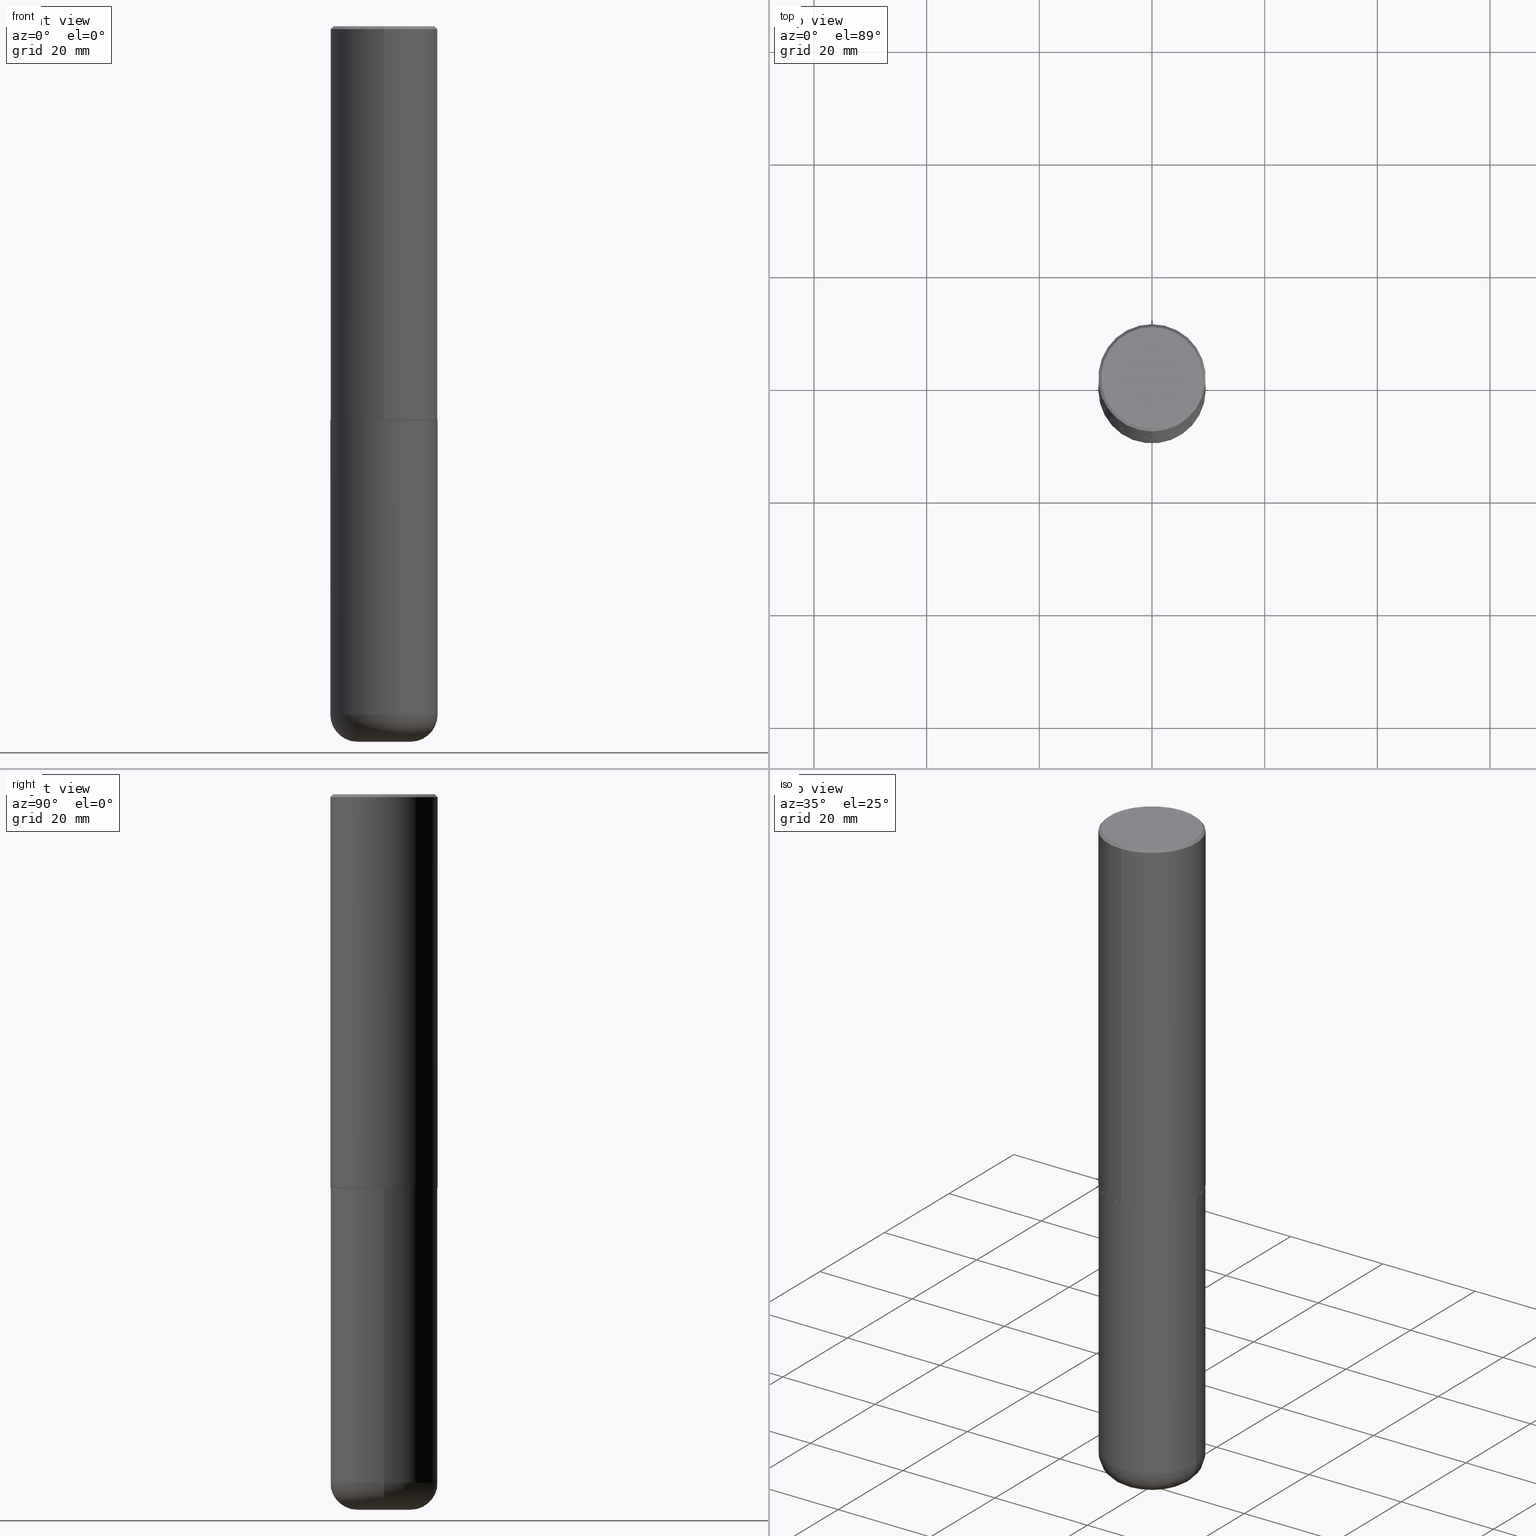
[diagram: canonical four-view strip — front | top / right | iso, engineering-drawing reading convention]
A machine part, canonical four-view strip (front | top / right | iso — engineering-drawing reading convention). The complete STEP part file that produces these views, byte-faithful:
ISO-10303-21;
HEADER;
FILE_DESCRIPTION (( 'STEP AP203' ),
    '1' );
FILE_NAME ('37674.STEP',
    '2024-03-02T07:50:25',
    ( '' ),
    ( '' ),
    'SwSTEP 2.0',
    'SolidWorks 2023',
    '' );
FILE_SCHEMA (( 'CONFIG_CONTROL_DESIGN' ));
ENDSEC;

DATA;
#1 = CARTESIAN_POINT ( 'NONE',  ( 6.726611077289389265E-29, -9.599322688432580971E-15, -2.750000000000000000 ) ) ;
#2 = CC_DESIGN_PERSON_AND_ORGANIZATION_ASSIGNMENT ( #382, #182, ( #349 ) ) ;
#3 = FACE_OUTER_BOUND ( 'NONE', #385, .T. ) ;
#4 = ORIENTED_EDGE ( 'NONE', *, *, #102, .F. ) ;
#5 = CIRCLE ( 'NONE', #242, 0.1850000000000000810 ) ;
#6 = DIRECTION ( 'NONE',  ( -2.445468806185136597E-29, 3.491481338843145583E-15, 1.000000000000000000 ) ) ;
#7 = VERTEX_POINT ( 'NONE', #262 ) ;
#8 = FACE_OUTER_BOUND ( 'NONE', #132, .T. ) ;
#9 = EDGE_CURVE ( 'NONE', #397, #365, #125, .T. ) ;
#10 = DATE_TIME_ROLE ( 'creation_date' ) ;
#11 = CARTESIAN_POINT ( 'NONE',  ( -2.611628041454596160E-15, -0.3740000000000096581, -2.749999999999998668 ) ) ;
#12 = EDGE_LOOP ( 'NONE', ( #109, #205, #30, #260 ) ) ;
#13 = ORIENTED_EDGE ( 'NONE', *, *, #312, .T. ) ;
#14 = VECTOR ( 'NONE', #346, 39.37007874015748143 ) ;
#15 = CARTESIAN_POINT ( 'NONE',  ( 6.724165036897648492E-29, -9.595832025636787455E-15, -2.749000000000000110 ) ) ;
#16 = EDGE_LOOP ( 'NONE', ( #169, #196, #314, #308 ) ) ;
#17 = DIRECTION ( 'NONE',  ( -6.982962677686265922E-15, -1.000000000000000000, 2.913971193241877611E-15 ) ) ;
#18 = ADVANCED_FACE ( 'NONE', ( #195 ), #177, .T. ) ;
#19 = CIRCLE ( 'NONE', #206, 0.3750000000000001110 ) ;
#20 = FACE_OUTER_BOUND ( 'NONE', #65, .T. ) ;
#21 = LOCAL_TIME ( 2, 50, 25.00000000000000000, #367 ) ;
#22 = EDGE_CURVE ( 'NONE', #334, #93, #266, .T. ) ;
#23 = DIRECTION ( 'NONE',  ( -2.446040391741596606E-29, 3.490662795793665557E-15, 1.000000000000000000 ) ) ;
#24 = CARTESIAN_POINT ( 'NONE',  ( 1.222734403092568523E-28, -1.745740669421572989E-14, -5.000000000000000000 ) ) ;
#25 = DIRECTION ( 'NONE',  ( 2.438088387897960049E-29, -3.491481338843145188E-15, -1.000000000000000000 ) ) ;
#26 = AXIS2_PLACEMENT_3D ( 'NONE', #98, #301, #388 ) ;
#27 = LENGTH_MEASURE_WITH_UNIT ( LENGTH_MEASURE( 0.02539999999999999897 ), #190 );
#28 = VERTEX_POINT ( 'NONE', #230 ) ;
#29 =( NAMED_UNIT ( * ) SI_UNIT ( $, .STERADIAN. ) SOLID_ANGLE_UNIT ( ) );
#30 = ORIENTED_EDGE ( 'NONE', *, *, #226, .F. ) ;
#31 = DIRECTION ( 'NONE',  ( 1.000000000000000000, 0.000000000000000000, 0.000000000000000000 ) ) ;
#32 = DIRECTION ( 'NONE',  ( -2.446040391741596606E-29, 3.490662795793665557E-15, 1.000000000000000000 ) ) ;
#33 = ORIENTED_EDGE ( 'NONE', *, *, #133, .F. ) ;
#34 = AXIS2_PLACEMENT_3D ( 'NONE', #77, #142, #81 ) ;
#35 = APPROVAL_PERSON_ORGANIZATION ( #69, #275, #278 ) ;
#36 = EDGE_LOOP ( 'NONE', ( #129, #403, #399, #263 ) ) ;
#37 = ORIENTED_EDGE ( 'NONE', *, *, #9, .T. ) ;
#38 = COORDINATED_UNIVERSAL_TIME_OFFSET ( 5, 0, .BEHIND. ) ;
#39 = ORIENTED_EDGE ( 'NONE', *, *, #49, .F. ) ;
#40 = CLOSED_SHELL ( 'NONE', ( #409, #94, #360, #313, #127, #145, #335, #251 ) ) ;
#41 = EDGE_CURVE ( 'NONE', #228, #325, #368, .T. ) ;
#42 = DIRECTION ( 'NONE',  ( -2.445468806185136597E-29, 3.491481338843145583E-15, 1.000000000000000000 ) ) ;
#43 = APPROVAL ( #47, 'UNSPECIFIED' ) ;
#44 = PLANE ( 'NONE',  #180 ) ;
#45 = CARTESIAN_POINT ( 'NONE',  ( -0.1850000000000000533, -1.547952117867934441E-14, -4.810000000000000497 ) ) ;
#46 = FACE_OUTER_BOUND ( 'NONE', #267, .T. ) ;
#47 = APPROVAL_STATUS ( 'not_yet_approved' ) ;
#48 = VECTOR ( 'NONE', #375, 39.37007874015748143 ) ;
#49 = EDGE_CURVE ( 'NONE', #7, #138, #104, .T. ) ;
#50 = CALENDAR_DATE ( 2024, 2, 3 ) ;
#51 = AXIS2_PLACEMENT_3D ( 'NONE', #239, #207, #17 ) ;
#52 = EDGE_CURVE ( 'NONE', #362, #138, #347, .T. ) ;
#53 = DIRECTION ( 'NONE',  ( -6.982962677686266711E-15, -1.000000000000000000, 2.921762560068730595E-15 ) ) ;
#54 = LINE ( 'NONE', #188, #247 ) ;
#55 = DIRECTION ( 'NONE',  ( -2.446040391741596606E-29, 3.490662795793665557E-15, 1.000000000000000000 ) ) ;
#56 = COORDINATED_UNIVERSAL_TIME_OFFSET ( 5, 0, .BEHIND. ) ;
#57 = PLANE ( 'NONE',  #26 ) ;
#58 = TOROIDAL_SURFACE ( 'NONE', #161, 0.1850000000000000533, 0.1899999999999999467 ) ;
#59 = DIRECTION ( 'NONE',  ( -2.445468806185136877E-29, 3.491481338843145188E-15, 1.000000000000000000 ) ) ;
#60 = ORIENTED_EDGE ( 'NONE', *, *, #240, .T. ) ;
#61 = APPLICATION_PROTOCOL_DEFINITION ( 'international standard', 'config_control_design', 1994, #214 ) ;
#62 = EDGE_CURVE ( 'NONE', #28, #228, #280, .T. ) ;
#63 = DIRECTION ( 'NONE',  ( -6.982962677686266711E-15, -1.000000000000000000, 2.921762560068730595E-15 ) ) ;
#64 = DIRECTION ( 'NONE',  ( -2.445468806185136597E-29, 3.491481338843145583E-15, 1.000000000000000000 ) ) ;
#65 = EDGE_LOOP ( 'NONE', ( #269, #181, #372, #414 ) ) ;
#66 = PLANE ( 'NONE',  #120 ) ;
#67 = ORIENTED_EDGE ( 'NONE', *, *, #9, .F. ) ;
#68 = AXIS2_PLACEMENT_3D ( 'NONE', #317, #92, #411 ) ;
#69 = PERSON_AND_ORGANIZATION ( #171, #272 ) ;
#70 = CARTESIAN_POINT ( 'NONE',  ( 0.1850000000000000810, -1.874925478958768986E-14, -5.000000000000000000 ) ) ;
#71 = PERSON_AND_ORGANIZATION ( #171, #272 ) ;
#72 = ORIENTED_EDGE ( 'NONE', *, *, #133, .T. ) ;
#73 = CARTESIAN_POINT ( 'NONE',  ( 1.176270495775050811E-28, -1.679402523983553013E-14, -4.810000000000000497 ) ) ;
#74 = EDGE_CURVE ( 'NONE', #235, #362, #5, .T. ) ;
#75 = PERSON_AND_ORGANIZATION_ROLE ( 'creator' ) ;
#76 = DIRECTION ( 'NONE',  ( 2.446040391741596606E-29, -3.490662795793665557E-15, -1.000000000000000000 ) ) ;
#77 = CARTESIAN_POINT ( 'NONE',  ( 1.176270495775050811E-28, -1.679402523983553013E-14, -4.810000000000000497 ) ) ;
#78 = AXIS2_PLACEMENT_3D ( 'NONE', #246, #76, #395 ) ;
#79 = CC_DESIGN_APPROVAL ( #43, ( #91 ) ) ;
#80 = CYLINDRICAL_SURFACE ( 'NONE', #217, 0.3750000000000001110 ) ;
#81 = DIRECTION ( 'NONE',  ( 1.000000000000000000, -6.982962677686265922E-15, 0.000000000000000000 ) ) ;
#82 = APPLICATION_CONTEXT ( 'configuration controlled 3d designs of mechanical parts and assemblies' ) ;
#83 = APPROVAL_DATE_TIME ( #216, #43 ) ;
#84 = CIRCLE ( 'NONE', #407, 0.1850000000000000810 ) ;
#85 = DIRECTION ( 'NONE',  ( 1.000000000000000000, -6.982962677686265922E-15, 4.876176775795935793E-29 ) ) ;
#86 = APPROVAL_PERSON_ORGANIZATION ( #315, #210, #95 ) ;
#87 = CARTESIAN_POINT ( 'NONE',  ( -0.3750000000000000555, -1.053326420172671351E-14, -2.750000000000000000 ) ) ;
#88 = CARTESIAN_POINT ( 'NONE',  ( 2.548781377355487113E-15, 0.3549999999999999822, -1.192522237898212341E-15 ) ) ;
#89 = EDGE_CURVE ( 'NONE', #288, #325, #268, .T. ) ;
#90 = AXIS2_PLACEMENT_3D ( 'NONE', #100, #150, #371 ) ;
#91 = SECURITY_CLASSIFICATION ( '', '', #276 ) ;
#92 = DIRECTION ( 'NONE',  ( -2.446040391741596606E-29, 3.490662795793665557E-15, 1.000000000000000000 ) ) ;
#93 = VERTEX_POINT ( 'NONE', #286 ) ;
#94 = ADVANCED_FACE ( 'NONE', ( #183 ), #220, .T. ) ;
#95 = APPROVAL_ROLE ( '' ) ;
#96 = DIRECTION ( 'NONE',  ( -6.982962677686266711E-15, -1.000000000000000000, 2.921762560068730595E-15 ) ) ;
#97 = CYLINDRICAL_SURFACE ( 'NONE', #90, 0.3750000000000001110 ) ;
#98 = CARTESIAN_POINT ( 'NONE',  ( 1.222734403092568523E-28, -1.745740669421572989E-14, -5.000000000000000000 ) ) ;
#99 = CC_DESIGN_PERSON_AND_ORGANIZATION_ASSIGNMENT ( #243, #404, ( #91 ) ) ;
#100 = CARTESIAN_POINT ( 'NONE',  ( 0.000000000000000000, 0.000000000000000000, 0.000000000000000000 ) ) ;
#101 = ORIENTED_EDGE ( 'NONE', *, *, #62, .T. ) ;
#102 = EDGE_CURVE ( 'NONE', #304, #238, #351, .T. ) ;
#103 = EDGE_LOOP ( 'NONE', ( #330, #13, #232, #201 ) ) ;
#104 = CIRCLE ( 'NONE', #34, 0.3750000000000001110 ) ;
#105 = CALENDAR_DATE ( 2024, 2, 3 ) ;
#106 = ORIENTED_EDGE ( 'NONE', *, *, #49, .T. ) ;
#107 = CC_DESIGN_PERSON_AND_ORGANIZATION_ASSIGNMENT ( #71, #140, ( #394 ) ) ;
#108 = CARTESIAN_POINT ( 'NONE',  ( -1.141397163745304909E-45, 1.628849886601155835E-31, 4.666305460853910467E-17 ) ) ;
#109 = ORIENTED_EDGE ( 'NONE', *, *, #284, .T. ) ;
#110 = DATE_TIME_ROLE ( 'classification_date' ) ;
#111 = AXIS2_PLACEMENT_3D ( 'NONE', #298, #6, #128 ) ;
#112 = PERSON_AND_ORGANIZATION ( #171, #272 ) ;
#113 = CARTESIAN_POINT ( 'NONE',  ( 2.664535259100376880E-15, 0.3750000000000002220, -1.308998548422625521E-15 ) ) ;
#114 = DIRECTION ( 'NONE',  ( -1.000000000000000000, 6.982962677686265922E-15, -4.876176775795935793E-29 ) ) ;
#115 = CONICAL_SURFACE ( 'NONE', #78, 0.3750000000000000555, 0.7853981633974465026 ) ;
#116 = EDGE_CURVE ( 'NONE', #304, #28, #417, .T. ) ;
#117 = EDGE_LOOP ( 'NONE', ( #106, #72, #67, #303 ) ) ;
#118 = CARTESIAN_POINT ( 'NONE',  ( 6.726611077289389265E-29, -9.599322688432580971E-15, -2.750000000000000000 ) ) ;
#119 = EDGE_CURVE ( 'NONE', #288, #334, #383, .T. ) ;
#120 = AXIS2_PLACEMENT_3D ( 'NONE', #172, #361, #332 ) ;
#121 = CARTESIAN_POINT ( 'NONE',  ( 0.3750000000000001110, -2.618611004132350411E-15, 1.828566290923476483E-29 ) ) ;
#122 = DIRECTION ( 'NONE',  ( -2.446040391741596606E-29, 3.490662795793665557E-15, 1.000000000000000000 ) ) ;
#123 = DIRECTION ( 'NONE',  ( 1.000000000000000000, -6.982962677686272233E-15, 0.000000000000000000 ) ) ;
#124 = ADVANCED_FACE ( 'NONE', ( #264 ), #58, .T. ) ;
#125 = CIRCLE ( 'NONE', #410, 0.3750000000000000555 ) ;
#126 = ORIENTED_EDGE ( 'NONE', *, *, #284, .F. ) ;
#127 = ADVANCED_FACE ( 'NONE', ( #3 ), #184, .T. ) ;
#128 = DIRECTION ( 'NONE',  ( 1.000000000000000000, -6.982962677686269077E-15, 4.883557194083113462E-29 ) ) ;
#129 = ORIENTED_EDGE ( 'NONE', *, *, #119, .F. ) ;
#130 = DIRECTION ( 'NONE',  ( -2.445468806185136597E-29, 3.491481338843145583E-15, 1.000000000000000000 ) ) ;
#131 = CARTESIAN_POINT ( 'NONE',  ( 6.725039217009124520E-29, -9.601573681818649859E-15, -2.750000000000000000 ) ) ;
#132 = EDGE_LOOP ( 'NONE', ( #273, #285 ) ) ;
#133 = EDGE_CURVE ( 'NONE', #138, #365, #54, .T. ) ;
#134 = CC_DESIGN_DATE_AND_TIME_ASSIGNMENT ( #336, #110, ( #91 ) ) ;
#135 = EDGE_LOOP ( 'NONE', ( #386, #202, #39, #170 ) ) ;
#136 = DIRECTION ( 'NONE',  ( 1.000000000000000000, -6.982962677686272233E-15, 0.000000000000000000 ) ) ;
#137 = DIRECTION ( 'NONE',  ( -2.446040391741596606E-29, 3.490662795793665557E-15, 1.000000000000000000 ) ) ;
#138 = VERTEX_POINT ( 'NONE', #156 ) ;
#139 = CARTESIAN_POINT ( 'NONE',  ( 1.222734403092568523E-28, -1.745740669421572989E-14, -5.000000000000000000 ) ) ;
#140 = PERSON_AND_ORGANIZATION_ROLE ( 'design_supplier' ) ;
#141 = PLANE ( 'NONE',  #378 ) ;
#142 = DIRECTION ( 'NONE',  ( -2.445468806185136597E-29, 3.491481338843145583E-15, 1.000000000000000000 ) ) ;
#143 = CIRCLE ( 'NONE', #357, 0.3750000000000003886 ) ;
#144 = DIRECTION ( 'NONE',  ( -2.445468806185136597E-29, 3.491481338843145583E-15, 1.000000000000000000 ) ) ;
#145 = ADVANCED_FACE ( 'NONE', ( #185 ), #295, .T. ) ;
#146 = COORDINATED_UNIVERSAL_TIME_OFFSET ( 5, 0, .BEHIND. ) ;
#147 = DIRECTION ( 'NONE',  ( 6.982962677686265922E-15, 1.000000000000000000, -3.494488891895536035E-15 ) ) ;
#148 = LOCAL_TIME ( 2, 50, 25.00000000000000000, #56 ) ;
#149 = LINE ( 'NONE', #113, #14 ) ;
#150 = DIRECTION ( 'NONE',  ( -2.445468806185136597E-29, 3.491481338843145583E-15, 1.000000000000000000 ) ) ;
#151 = CALENDAR_DATE ( 2024, 2, 3 ) ;
#152 = ORIENTED_EDGE ( 'NONE', *, *, #370, .F. ) ;
#153 = DIRECTION ( 'NONE',  ( -6.982962677686266711E-15, -1.000000000000000000, 2.921762560068730595E-15 ) ) ;
#154 = AXIS2_PLACEMENT_3D ( 'NONE', #218, #122, #255 ) ;
#155 = CIRCLE ( 'NONE', #408, 0.1899999999999999190 ) ;
#156 = CARTESIAN_POINT ( 'NONE',  ( -0.3750000000000000555, -1.412948998073515443E-14, -4.810000000000000497 ) ) ;
#157 = DIRECTION ( 'NONE',  ( -2.446040391741596606E-29, 3.490662795793665557E-15, 1.000000000000000000 ) ) ;
#158 = EDGE_CURVE ( 'NONE', #7, #397, #413, .T. ) ;
#159 = ORIENTED_EDGE ( 'NONE', *, *, #41, .T. ) ;
#160 = DIRECTION ( 'NONE',  ( -6.982962677686265922E-15, -1.000000000000000000, 3.494488891895536035E-15 ) ) ;
#161 = AXIS2_PLACEMENT_3D ( 'NONE', #73, #130, #309 ) ;
#162 = CONICAL_SURFACE ( 'NONE', #416, 0.3739999999999999991, 0.7853981633977213939 ) ;
#163 = EDGE_LOOP ( 'NONE', ( #316, #299 ) ) ;
#164 = CARTESIAN_POINT ( 'NONE',  ( 0.3750000000000000555, -1.222018468595100145E-14, -2.750000000000000000 ) ) ;
#165 = CARTESIAN_POINT ( 'NONE',  ( -2.504081769186608216E-15, -0.3549999999999999822, 1.285848347115290366E-15 ) ) ;
#166 = ORIENTED_EDGE ( 'NONE', *, *, #312, .F. ) ;
#167 = EDGE_CURVE ( 'NONE', #362, #235, #84, .T. ) ;
#168 = CARTESIAN_POINT ( 'NONE',  ( 1.176270495775050811E-28, -1.679402523983553013E-14, -4.810000000000000497 ) ) ;
#169 = ORIENTED_EDGE ( 'NONE', *, *, #52, .F. ) ;
#170 = ORIENTED_EDGE ( 'NONE', *, *, #348, .F. ) ;
#171 = PERSON ( 'UNSPECIFIED', 'UNSPECIFIED', 'UNSPECIFIED', ('UNSPECIFIED'), ('UNSPECIFIED'), ('UNSPECIFIED') ) ;
#172 = CARTESIAN_POINT ( 'NONE',  ( 2.478951750578624209E-15, 0.3549999999999999822, -1.215853765202481601E-15 ) ) ;
#173 = CC_DESIGN_PERSON_AND_ORGANIZATION_ASSIGNMENT ( #406, #75, ( #394 ) ) ;
#174 = DESIGN_CONTEXT ( 'detailed design', #82, 'design' ) ;
#175 = EDGE_CURVE ( 'NONE', #365, #397, #393, .T. ) ;
#176 = DIRECTION ( 'NONE',  ( -2.445468806185136597E-29, 3.491481338843145583E-15, 1.000000000000000000 ) ) ;
#177 = TOROIDAL_SURFACE ( 'NONE', #111, 0.1850000000000000533, 0.1899999999999999467 ) ;
#178 = ADVANCED_FACE ( 'NONE', ( #389 ), #97, .T. ) ;
#179 = APPROVAL_ROLE ( '' ) ;
#180 = AXIS2_PLACEMENT_3D ( 'NONE', #213, #245, #318 ) ;
#181 = ORIENTED_EDGE ( 'NONE', *, *, #236, .F. ) ;
#182 = PERSON_AND_ORGANIZATION_ROLE ( 'creator' ) ;
#183 = FACE_OUTER_BOUND ( 'NONE', #103, .T. ) ;
#184 = CYLINDRICAL_SURFACE ( 'NONE', #154, 0.3750000000000002220 ) ;
#185 = FACE_OUTER_BOUND ( 'NONE', #333, .T. ) ;
#186 = CARTESIAN_POINT ( 'NONE',  ( -2.572686749164323547E-15, -0.3750000000000001110, -0.01999999999999877570 ) ) ;
#187 = FACE_OUTER_BOUND ( 'NONE', #324, .T. ) ;
#188 = CARTESIAN_POINT ( 'NONE',  ( -0.3750000000000001110, 2.664535259100376486E-15, -1.844600658845590159E-29 ) ) ;
#189 = CALENDAR_DATE ( 2024, 2, 3 ) ;
#190 =( LENGTH_UNIT ( ) NAMED_UNIT ( * ) SI_UNIT ( $, .METRE. ) );
#191 = VECTOR ( 'NONE', #211, 39.37007874015748143 ) ;
#192 = APPROVAL_PERSON_ORGANIZATION ( #112, #43, #179 ) ;
#193 = EDGE_CURVE ( 'NONE', #325, #93, #331, .T. ) ;
#194 = ORIENTED_EDGE ( 'NONE', *, *, #175, .T. ) ;
#195 = FACE_OUTER_BOUND ( 'NONE', #16, .T. ) ;
#196 = ORIENTED_EDGE ( 'NONE', *, *, #167, .T. ) ;
#197 = DIRECTION ( 'NONE',  ( 0.000000000000000000, 0.000000000000000000, 1.000000000000000000 ) ) ;
#198 = CIRCLE ( 'NONE', #415, 0.3549999999999999822 ) ;
#199 = DIRECTION ( 'NONE',  ( 4.937700262164538576E-15, 0.7071067811865437980, -0.7071067811865512365 ) ) ;
#200 = MANIFOLD_SOLID_BREP ( 'Body-Move/Copy2[1]', #229 ) ;
#201 = ORIENTED_EDGE ( 'NONE', *, *, #41, .F. ) ;
#202 = ORIENTED_EDGE ( 'NONE', *, *, #52, .T. ) ;
#203 = CALENDAR_DATE ( 2024, 2, 3 ) ;
#204 = DIRECTION ( 'NONE',  ( -6.982962677686265922E-15, -1.000000000000000000, 3.490662795793665557E-15 ) ) ;
#205 = ORIENTED_EDGE ( 'NONE', *, *, #116, .T. ) ;
#206 = AXIS2_PLACEMENT_3D ( 'NONE', #168, #42, #271 ) ;
#207 = DIRECTION ( 'NONE',  ( -2.446040391741596606E-29, 3.490662795793665557E-15, 1.000000000000000000 ) ) ;
#208 = APPROVAL_STATUS ( 'not_yet_approved' ) ;
#209 = FACE_OUTER_BOUND ( 'NONE', #337, .T. ) ;
#210 = APPROVAL ( #283, 'UNSPECIFIED' ) ;
#211 = DIRECTION ( 'NONE',  ( -4.937700262165896205E-15, -0.7071067811867381980, 0.7071067811863568364 ) ) ;
#212 = LOCAL_TIME ( 2, 50, 25.00000000000000000, #38 ) ;
#213 = CARTESIAN_POINT ( 'NONE',  ( 6.726611077289389265E-29, -9.599322688432580971E-15, -2.750000000000000000 ) ) ;
#214 = APPLICATION_CONTEXT ( 'configuration controlled 3d designs of mechanical parts and assemblies' ) ;
#215 = DATE_AND_TIME ( #189, #148 ) ;
#216 = DATE_AND_TIME ( #50, #254 ) ;
#217 = AXIS2_PLACEMENT_3D ( 'NONE', #345, #176, #85 ) ;
#218 = CARTESIAN_POINT ( 'NONE',  ( 0.000000000000000000, 0.000000000000000000, 0.000000000000000000 ) ) ;
#219 = DIRECTION ( 'NONE',  ( 5.024295867789434219E-15, 0.7071067811867430830, 0.7071067811863519514 ) ) ;
#220 = CYLINDRICAL_SURFACE ( 'NONE', #68, 0.3750000000000002220 ) ;
#221 = CC_DESIGN_DATE_AND_TIME_ASSIGNMENT ( #215, #10, ( #349 ) ) ;
#222 = FACE_OUTER_BOUND ( 'NONE', #12, .T. ) ;
#223 = CARTESIAN_POINT ( 'NONE',  ( 6.725039217009124520E-29, -9.601573681818649859E-15, -2.750000000000000000 ) ) ;
#224 = CARTESIAN_POINT ( 'NONE',  ( 6.726611077289389265E-29, -9.599322688432580971E-15, -2.750000000000000000 ) ) ;
#225 = ORIENTED_EDGE ( 'NONE', *, *, #62, .F. ) ;
#226 = EDGE_CURVE ( 'NONE', #228, #28, #143, .T. ) ;
#227 = CARTESIAN_POINT ( 'NONE',  ( 2.618611004132350411E-15, 0.3749999999999999445, -0.02000000000000139513 ) ) ;
#228 = VERTEX_POINT ( 'NONE', #274 ) ;
#229 = CLOSED_SHELL ( 'NONE', ( #178, #124, #354, #329, #18, #392 ) ) ;
#230 = CARTESIAN_POINT ( 'NONE',  ( 2.664535259100411196E-15, 0.3749999999999907296, -2.749000000000000998 ) ) ;
#231 = CC_DESIGN_APPROVAL ( #275, ( #394 ) ) ;
#232 = ORIENTED_EDGE ( 'NONE', *, *, #193, .F. ) ;
#233 = APPROVAL_DATE_TIME ( #373, #275 ) ;
#234 = DIRECTION ( 'NONE',  ( -2.446040391741596606E-29, 3.490662795793665557E-15, 1.000000000000000000 ) ) ;
#235 = VERTEX_POINT ( 'NONE', #70 ) ;
#236 = EDGE_CURVE ( 'NONE', #334, #288, #198, .T. ) ;
#237 = DIRECTION ( 'NONE',  ( -2.446040391741596606E-29, 3.490662795793665557E-15, 1.000000000000000000 ) ) ;
#238 = VERTEX_POINT ( 'NONE', #328 ) ;
#239 = CARTESIAN_POINT ( 'NONE',  ( 6.724165036897648492E-29, -9.595832025636787455E-15, -2.749000000000000110 ) ) ;
#240 = EDGE_CURVE ( 'NONE', #138, #7, #19, .T. ) ;
#241 = AXIS2_PLACEMENT_3D ( 'NONE', #118, #55, #153 ) ;
#242 = AXIS2_PLACEMENT_3D ( 'NONE', #139, #144, #136 ) ;
#243 = PERSON_AND_ORGANIZATION ( #171, #272 ) ;
#244 = CARTESIAN_POINT ( 'NONE',  ( -2.618611004132351594E-15, -0.3750000000000002220, 1.308998548422625521E-15 ) ) ;
#245 = DIRECTION ( 'NONE',  ( -2.446040391741596045E-29, 3.490662795793665557E-15, 1.000000000000000000 ) ) ;
#246 = CARTESIAN_POINT ( 'NONE',  ( 4.892080783483214581E-31, -6.981325591587361238E-17, -0.02000000000000008715 ) ) ;
#247 = VECTOR ( 'NONE', #59, 39.37007874015748143 ) ;
#248 = CARTESIAN_POINT ( 'NONE',  ( 4.892080783483214581E-31, -6.981325591587361238E-17, -0.02000000000000008715 ) ) ;
#249 = CARTESIAN_POINT ( 'NONE',  ( 4.892080783483214581E-31, -6.981325591587361238E-17, -0.02000000000000008715 ) ) ;
#250 = APPROVAL_DATE_TIME ( #356, #210 ) ;
#251 = ADVANCED_FACE ( 'NONE', ( #374 ), #66, .F. ) ;
#252 = VECTOR ( 'NONE', #219, 39.37007874015748143 ) ;
#253 = SHAPE_DEFINITION_REPRESENTATION ( #320, #338 ) ;
#254 = LOCAL_TIME ( 2, 50, 25.00000000000000000, #379 ) ;
#255 = DIRECTION ( 'NONE',  ( -6.982962677686266711E-15, -1.000000000000000000, 3.490662795793665951E-15 ) ) ;
#256 = PERSON_AND_ORGANIZATION_ROLE ( 'design_owner' ) ;
#257 = CARTESIAN_POINT ( 'NONE',  ( 6.726611077289389265E-29, -9.599322688432580971E-15, -2.750000000000000000 ) ) ;
#258 = CARTESIAN_POINT ( 'NONE',  ( -1.141397163745304909E-45, 1.628849886601155835E-31, 4.666305460853910467E-17 ) ) ;
#259 = DIRECTION ( 'NONE',  ( -2.446040391741596606E-29, 3.490662795793665557E-15, 1.000000000000000000 ) ) ;
#260 = ORIENTED_EDGE ( 'NONE', *, *, #305, .F. ) ;
#261 = CIRCLE ( 'NONE', #358, 0.3750000000000000555 ) ;
#262 = CARTESIAN_POINT ( 'NONE',  ( 0.3750000000000000555, -1.941263624396788015E-14, -4.810000000000000497 ) ) ;
#263 = ORIENTED_EDGE ( 'NONE', *, *, #22, .F. ) ;
#264 = FACE_OUTER_BOUND ( 'NONE', #135, .T. ) ;
#265 = CARTESIAN_POINT ( 'NONE',  ( 4.892080783483214581E-31, -6.981325591587361238E-17, -0.02000000000000008715 ) ) ;
#266 = LINE ( 'NONE', #227, #291 ) ;
#267 = EDGE_LOOP ( 'NONE', ( #33, #60, #396, #369 ) ) ;
#268 = LINE ( 'NONE', #186, #339 ) ;
#269 = ORIENTED_EDGE ( 'NONE', *, *, #89, .F. ) ;
#270 = AXIS2_PLACEMENT_3D ( 'NONE', #258, #157, #390 ) ;
#271 = DIRECTION ( 'NONE',  ( 1.000000000000000000, -6.982962677686265922E-15, 0.000000000000000000 ) ) ;
#272 = ORGANIZATION ( 'UNSPECIFIED', 'UNSPECIFIED', '' ) ;
#273 = ORIENTED_EDGE ( 'NONE', *, *, #74, .F. ) ;
#274 = CARTESIAN_POINT ( 'NONE',  ( -2.618611004132284935E-15, -0.3750000000000099920, -2.748999999999999222 ) ) ;
#275 = APPROVAL ( #208, 'UNSPECIFIED' ) ;
#276 = SECURITY_CLASSIFICATION_LEVEL ( 'unclassified' ) ;
#277 = DIRECTION ( 'NONE',  ( -6.982962677686265922E-15, -1.000000000000000000, 3.494488891895536035E-15 ) ) ;
#278 = APPROVAL_ROLE ( '' ) ;
#279 = AXIS2_PLACEMENT_3D ( 'NONE', #45, #310, #341 ) ;
#280 = CIRCLE ( 'NONE', #51, 0.3750000000000003886 ) ;
#281 = CONICAL_SURFACE ( 'NONE', #401, 0.3750000000000000555, 0.7853981633974465026 ) ;
#282 = CARTESIAN_POINT ( 'NONE',  ( -0.1850000000000000810, -1.513619630689734772E-14, -5.000000000000000000 ) ) ;
#283 = APPROVAL_STATUS ( 'not_yet_approved' ) ;
#284 = EDGE_CURVE ( 'NONE', #238, #304, #366, .T. ) ;
#285 = ORIENTED_EDGE ( 'NONE', *, *, #167, .F. ) ;
#286 = CARTESIAN_POINT ( 'NONE',  ( 2.618611004132350411E-15, 0.3749999999999999445, -0.02000000000000139513 ) ) ;
#287 = PRODUCT ( '37674', '37674', '', ( #319 ) ) ;
#288 = VERTEX_POINT ( 'NONE', #165 ) ;
#289 = DIRECTION ( 'NONE',  ( 1.000000000000000000, -6.982962677686264344E-15, 0.000000000000000000 ) ) ;
#290 = PERSON_AND_ORGANIZATION ( #171, #272 ) ;
#291 = VECTOR ( 'NONE', #199, 39.37007874015748143 ) ;
#292 = DIRECTION ( 'NONE',  ( -2.446040391741596606E-29, 3.490662795793665557E-15, 1.000000000000000000 ) ) ;
#293 = DIRECTION ( 'NONE',  ( -2.445468806185136597E-29, 3.491481338843145583E-15, 1.000000000000000000 ) ) ;
#294 = DIRECTION ( 'NONE',  ( 1.000000000000000000, -6.982962677686266711E-15, 0.000000000000000000 ) ) ;
#295 = CONICAL_SURFACE ( 'NONE', #400, 0.3739999999999999991, 0.7853981633977213939 ) ;
#296 =( GEOMETRIC_REPRESENTATION_CONTEXT ( 3 ) GLOBAL_UNCERTAINTY_ASSIGNED_CONTEXT ( ( #344 ) ) GLOBAL_UNIT_ASSIGNED_CONTEXT ( ( #391, #363, #29 ) ) REPRESENTATION_CONTEXT ( 'NONE', 'WORKASPACE' ) );
#297 = CARTESIAN_POINT ( 'NONE',  ( 2.660982545421643429E-15, 0.3739999999999903957, -2.750000000000000888 ) ) ;
#298 = CARTESIAN_POINT ( 'NONE',  ( 1.176270495775050811E-28, -1.679402523983553013E-14, -4.810000000000000497 ) ) ;
#299 = ORIENTED_EDGE ( 'NONE', *, *, #119, .T. ) ;
#300 = CARTESIAN_POINT ( 'NONE',  ( 2.657429831742841742E-15, 0.3739999999999903957, -2.750000000000000888 ) ) ;
#301 = DIRECTION ( 'NONE',  ( 2.438088387897960049E-29, -3.491481338843145188E-15, -1.000000000000000000 ) ) ;
#302 = LINE ( 'NONE', #11, #191 ) ;
#303 = ORIENTED_EDGE ( 'NONE', *, *, #158, .F. ) ;
#304 = VERTEX_POINT ( 'NONE', #297 ) ;
#305 = EDGE_CURVE ( 'NONE', #238, #228, #302, .T. ) ;
#306 = VECTOR ( 'NONE', #321, 39.37007874015748143 ) ;
#307 = PRODUCT_RELATED_PRODUCT_CATEGORY ( 'detail', '', ( #287 ) ) ;
#308 = ORIENTED_EDGE ( 'NONE', *, *, #240, .F. ) ;
#309 = DIRECTION ( 'NONE',  ( 1.000000000000000000, -6.982962677686269077E-15, 4.883557194083113462E-29 ) ) ;
#310 = DIRECTION ( 'NONE',  ( 7.105427357601001859E-15, 1.000000000000000000, -3.491481338843145583E-15 ) ) ;
#311 = CARTESIAN_POINT ( 'NONE',  ( -2.572686749164323547E-15, -0.3750000000000001110, -0.01999999999999877570 ) ) ;
#312 = EDGE_CURVE ( 'NONE', #28, #93, #149, .T. ) ;
#313 = ADVANCED_FACE ( 'NONE', ( #20 ), #115, .T. ) ;
#314 = ORIENTED_EDGE ( 'NONE', *, *, #348, .T. ) ;
#315 = PERSON_AND_ORGANIZATION ( #171, #272 ) ;
#316 = ORIENTED_EDGE ( 'NONE', *, *, #236, .T. ) ;
#317 = CARTESIAN_POINT ( 'NONE',  ( 0.000000000000000000, 0.000000000000000000, 0.000000000000000000 ) ) ;
#318 = DIRECTION ( 'NONE',  ( -6.982962677686265922E-15, -1.000000000000000000, 3.490662795793665557E-15 ) ) ;
#319 = MECHANICAL_CONTEXT ( 'NONE', #214, 'mechanical' ) ;
#320 = PRODUCT_DEFINITION_SHAPE ( 'NONE', 'NONE',  #349 ) ;
#321 = DIRECTION ( 'NONE',  ( -2.445468806185136877E-29, 3.491481338843145188E-15, 1.000000000000000000 ) ) ;
#322 = AXIS2_PLACEMENT_3D ( 'NONE', #223, #418, #294 ) ;
#323 = CC_DESIGN_SECURITY_CLASSIFICATION ( #91, ( #394 ) ) ;
#324 = EDGE_LOOP ( 'NONE', ( #37, #194 ) ) ;
#325 = VERTEX_POINT ( 'NONE', #311 ) ;
#326 = DIRECTION ( 'NONE',  ( -4.851104656540954809E-15, -0.7071067811865486830, -0.7071067811865463515 ) ) ;
#327 = CARTESIAN_POINT ( 'NONE',  ( 0.000000000000000000, 0.000000000000000000, 0.000000000000000000 ) ) ;
#328 = CARTESIAN_POINT ( 'NONE',  ( -2.611628041454596160E-15, -0.3740000000000096581, -2.749999999999998668 ) ) ;
#329 = ADVANCED_FACE ( 'NONE', ( #46 ), #80, .T. ) ;
#330 = ORIENTED_EDGE ( 'NONE', *, *, #226, .T. ) ;
#331 = CIRCLE ( 'NONE', #377, 0.3750000000000000555 ) ;
#332 = DIRECTION ( 'NONE',  ( 6.982962677686265922E-15, 1.000000000000000000, -3.490662795793665557E-15 ) ) ;
#333 = EDGE_LOOP ( 'NONE', ( #353, #359, #402, #225 ) ) ;
#334 = VERTEX_POINT ( 'NONE', #88 ) ;
#335 = ADVANCED_FACE ( 'NONE', ( #209 ), #44, .F. ) ;
#336 = DATE_AND_TIME ( #203, #21 ) ;
#337 = EDGE_LOOP ( 'NONE', ( #126, #4 ) ) ;
#338 = ADVANCED_BREP_SHAPE_REPRESENTATION ( '37674', ( #200, #343, #352 ), #296 ) ;
#339 = VECTOR ( 'NONE', #326, 39.37007874015748143 ) ;
#340 = CC_DESIGN_APPROVAL ( #210, ( #349 ) ) ;
#341 = DIRECTION ( 'NONE',  ( -1.000000000000000000, 7.105427357601001070E-15, 0.000000000000000000 ) ) ;
#342 = CARTESIAN_POINT ( 'NONE',  ( 0.1850000000000000533, -1.808587333520749010E-14, -4.810000000000000497 ) ) ;
#343 = MANIFOLD_SOLID_BREP ( 'Body-Move/Copy2[2]', #40 ) ;
#344 = UNCERTAINTY_MEASURE_WITH_UNIT (LENGTH_MEASURE( 1.000000000000000082E-05 ), #391, 'distance_accuracy_value', 'NONE');
#345 = CARTESIAN_POINT ( 'NONE',  ( 0.000000000000000000, 0.000000000000000000, 0.000000000000000000 ) ) ;
#346 = DIRECTION ( 'NONE',  ( -2.446040391741596606E-29, 3.490662795793665557E-15, 1.000000000000000000 ) ) ;
#347 = CIRCLE ( 'NONE', #279, 0.1899999999999999190 ) ;
#348 = EDGE_CURVE ( 'NONE', #235, #7, #155, .T. ) ;
#349 = PRODUCT_DEFINITION ( 'UNKNOWN', '', #394, #174 ) ;
#350 = FACE_OUTER_BOUND ( 'NONE', #36, .T. ) ;
#351 = CIRCLE ( 'NONE', #241, 0.3739999999999999991 ) ;
#352 = AXIS2_PLACEMENT_3D ( 'NONE', #327, #197, #31 ) ;
#353 = ORIENTED_EDGE ( 'NONE', *, *, #116, .F. ) ;
#354 = ADVANCED_FACE ( 'NONE', ( #187 ), #141, .F. ) ;
#355 = DIRECTION ( 'NONE',  ( -6.982962677686266711E-15, -1.000000000000000000, 3.491481338843145583E-15 ) ) ;
#356 = DATE_AND_TIME ( #151, #384 ) ;
#357 = AXIS2_PLACEMENT_3D ( 'NONE', #15, #137, #364 ) ;
#358 = AXIS2_PLACEMENT_3D ( 'NONE', #249, #259, #160 ) ;
#359 = ORIENTED_EDGE ( 'NONE', *, *, #102, .T. ) ;
#360 = ADVANCED_FACE ( 'NONE', ( #350 ), #281, .T. ) ;
#361 = DIRECTION ( 'NONE',  ( 2.446040391741596045E-29, -3.490662795793665557E-15, -1.000000000000000000 ) ) ;
#362 = VERTEX_POINT ( 'NONE', #282 ) ;
#363 =( NAMED_UNIT ( * ) PLANE_ANGLE_UNIT ( ) SI_UNIT ( $, .RADIAN. ) );
#364 = DIRECTION ( 'NONE',  ( -6.982962677686265922E-15, -1.000000000000000000, 2.913971193241877611E-15 ) ) ;
#365 = VERTEX_POINT ( 'NONE', #87 ) ;
#366 = CIRCLE ( 'NONE', #380, 0.3739999999999999991 ) ;
#367 = COORDINATED_UNIVERSAL_TIME_OFFSET ( 5, 0, .BEHIND. ) ;
#368 = LINE ( 'NONE', #244, #48 ) ;
#369 = ORIENTED_EDGE ( 'NONE', *, *, #175, .F. ) ;
#370 = EDGE_CURVE ( 'NONE', #93, #325, #261, .T. ) ;
#371 = DIRECTION ( 'NONE',  ( 1.000000000000000000, -6.982962677686265922E-15, 4.876176775795935793E-29 ) ) ;
#372 = ORIENTED_EDGE ( 'NONE', *, *, #22, .T. ) ;
#373 = DATE_AND_TIME ( #105, #212 ) ;
#374 = FACE_OUTER_BOUND ( 'NONE', #163, .T. ) ;
#375 = DIRECTION ( 'NONE',  ( -2.446040391741596606E-29, 3.490662795793665557E-15, 1.000000000000000000 ) ) ;
#376 = DIMENSIONAL_EXPONENTS ( 1.000000000000000000, 0.000000000000000000, 0.000000000000000000, 0.000000000000000000, 0.000000000000000000, 0.000000000000000000, 0.000000000000000000 ) ;
#377 = AXIS2_PLACEMENT_3D ( 'NONE', #265, #234, #277 ) ;
#378 = AXIS2_PLACEMENT_3D ( 'NONE', #412, #25, #114 ) ;
#379 = COORDINATED_UNIVERSAL_TIME_OFFSET ( 5, 0, .BEHIND. ) ;
#380 = AXIS2_PLACEMENT_3D ( 'NONE', #224, #32, #63 ) ;
#381 = DIRECTION ( 'NONE',  ( 2.446040391741596606E-29, -3.490662795793665557E-15, -1.000000000000000000 ) ) ;
#382 = PERSON_AND_ORGANIZATION ( #171, #272 ) ;
#383 = CIRCLE ( 'NONE', #270, 0.3549999999999999822 ) ;
#384 = LOCAL_TIME ( 2, 50, 25.00000000000000000, #146 ) ;
#385 = EDGE_LOOP ( 'NONE', ( #166, #101, #159, #152 ) ) ;
#386 = ORIENTED_EDGE ( 'NONE', *, *, #74, .T. ) ;
#387 = APPLICATION_PROTOCOL_DEFINITION ( 'international standard', 'config_control_design', 1994, #82 ) ;
#388 = DIRECTION ( 'NONE',  ( -1.000000000000000000, 6.982962677686265922E-15, -4.876176775795935793E-29 ) ) ;
#389 = FACE_OUTER_BOUND ( 'NONE', #117, .T. ) ;
#390 = DIRECTION ( 'NONE',  ( -6.982962677686265922E-15, -1.000000000000000000, 3.490662795793665557E-15 ) ) ;
#391 =( CONVERSION_BASED_UNIT ( 'INCH', #27 ) LENGTH_UNIT ( ) NAMED_UNIT ( #376 ) );
#392 = ADVANCED_FACE ( 'NONE', ( #8 ), #57, .T. ) ;
#393 = CIRCLE ( 'NONE', #322, 0.3750000000000000555 ) ;
#394 = PRODUCT_DEFINITION_FORMATION_WITH_SPECIFIED_SOURCE ( 'ANY', '', #287, .NOT_KNOWN. ) ;
#395 = DIRECTION ( 'NONE',  ( 6.982962677686265922E-15, 1.000000000000000000, -3.494488891895536035E-15 ) ) ;
#396 = ORIENTED_EDGE ( 'NONE', *, *, #158, .T. ) ;
#397 = VERTEX_POINT ( 'NONE', #164 ) ;
#398 = DIRECTION ( 'NONE',  ( 1.000000000000000000, -6.982962677686266711E-15, 0.000000000000000000 ) ) ;
#399 = ORIENTED_EDGE ( 'NONE', *, *, #193, .T. ) ;
#400 = AXIS2_PLACEMENT_3D ( 'NONE', #257, #23, #53 ) ;
#401 = AXIS2_PLACEMENT_3D ( 'NONE', #248, #381, #147 ) ;
#402 = ORIENTED_EDGE ( 'NONE', *, *, #305, .T. ) ;
#403 = ORIENTED_EDGE ( 'NONE', *, *, #89, .T. ) ;
#404 = PERSON_AND_ORGANIZATION_ROLE ( 'classification_officer' ) ;
#405 = CC_DESIGN_PERSON_AND_ORGANIZATION_ASSIGNMENT ( #290, #256, ( #287 ) ) ;
#406 = PERSON_AND_ORGANIZATION ( #171, #272 ) ;
#407 = AXIS2_PLACEMENT_3D ( 'NONE', #24, #293, #123 ) ;
#408 = AXIS2_PLACEMENT_3D ( 'NONE', #342, #355, #289 ) ;
#409 = ADVANCED_FACE ( 'NONE', ( #222 ), #162, .T. ) ;
#410 = AXIS2_PLACEMENT_3D ( 'NONE', #131, #64, #398 ) ;
#411 = DIRECTION ( 'NONE',  ( -6.982962677686266711E-15, -1.000000000000000000, 3.490662795793665951E-15 ) ) ;
#412 = CARTESIAN_POINT ( 'NONE',  ( 6.725039217009124520E-29, -9.601573681818649859E-15, -2.750000000000000000 ) ) ;
#413 = LINE ( 'NONE', #121, #306 ) ;
#414 = ORIENTED_EDGE ( 'NONE', *, *, #370, .T. ) ;
#415 = AXIS2_PLACEMENT_3D ( 'NONE', #108, #237, #204 ) ;
#416 = AXIS2_PLACEMENT_3D ( 'NONE', #1, #292, #96 ) ;
#417 = LINE ( 'NONE', #300, #252 ) ;
#418 = DIRECTION ( 'NONE',  ( -2.445468806185136597E-29, 3.491481338843145583E-15, 1.000000000000000000 ) ) ;
ENDSEC;
END-ISO-10303-21;
